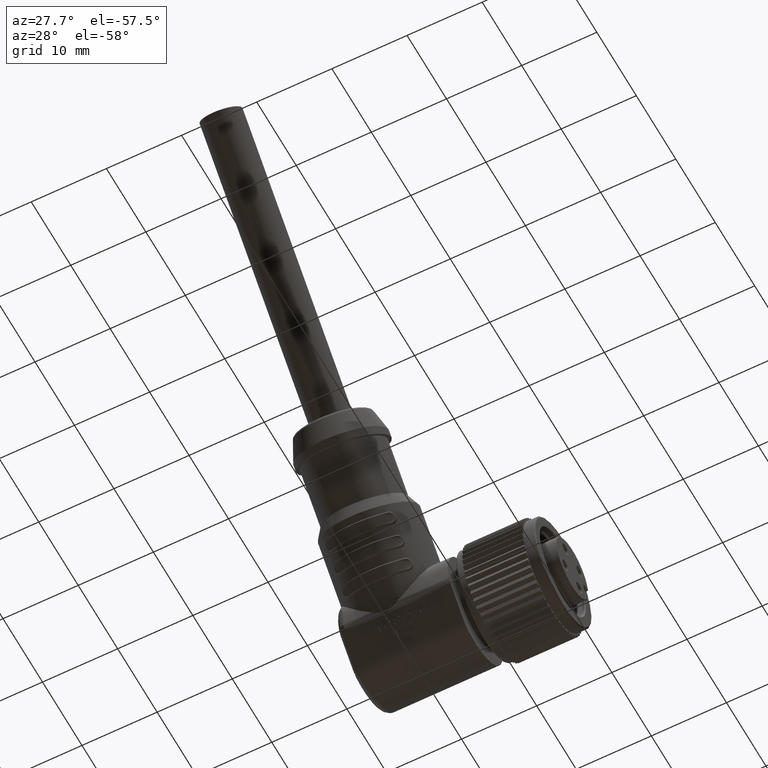
[diagram: clean part render]
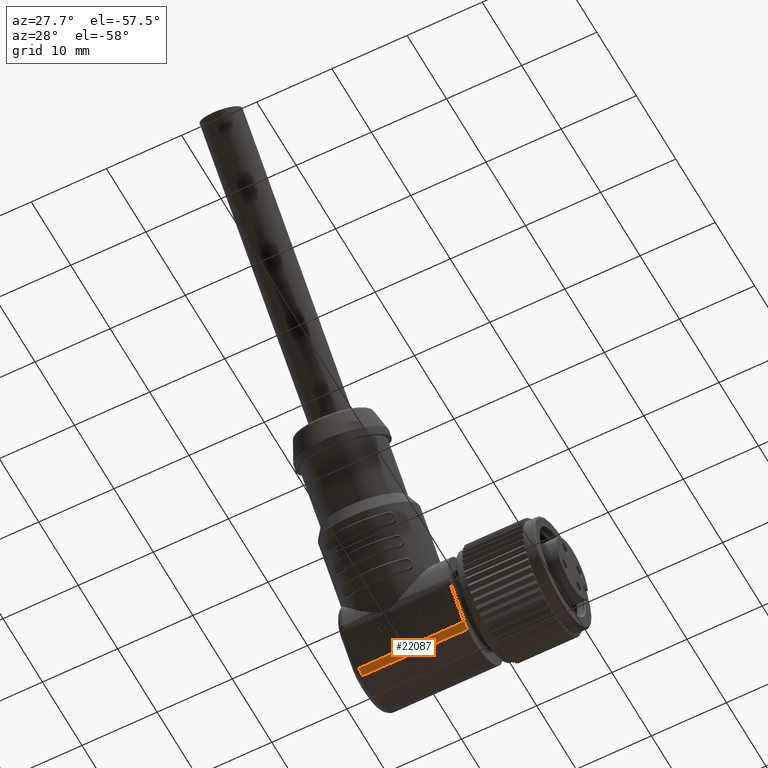
[diagram: same view with one face highlighted and labeled with its STEP entity id]
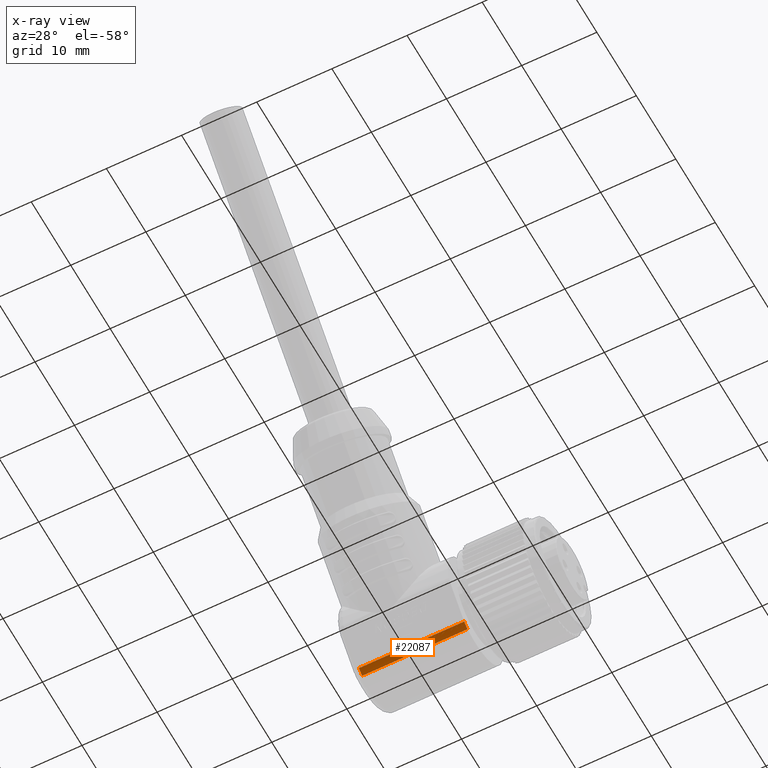
[diagram: x-ray of the same camera — body ghosted, the highlighted face saturated]
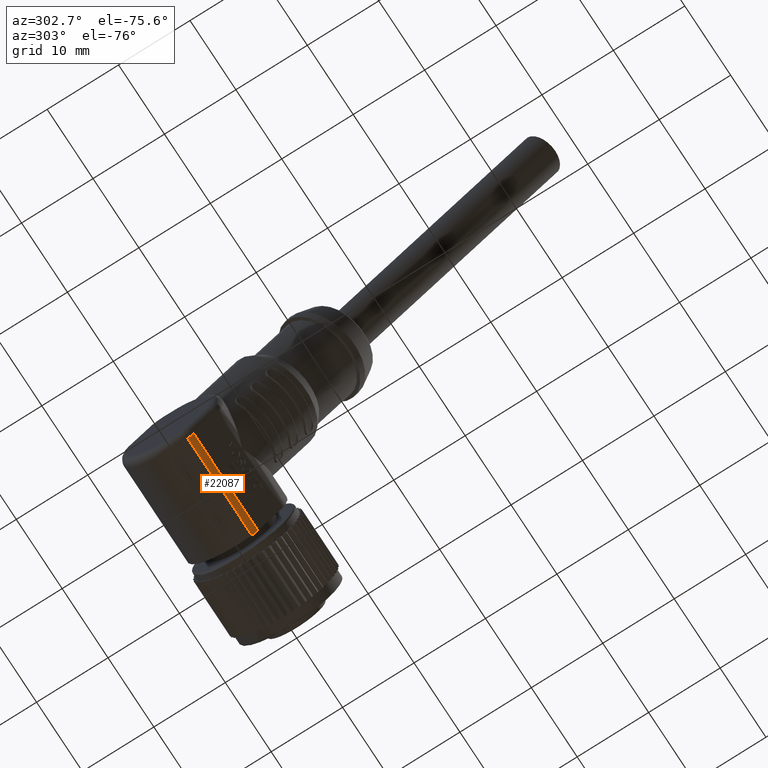
[diagram: same view with one face highlighted and labeled with its STEP entity id]
A machine part, auxiliary view. The second image highlights one B-rep face of the part: STEP entity #22087.
The next image is the same camera in x-ray: the body ghosted, the highlighted face saturated — about 0% of this face is hidden behind the body in this view.
A second angle (auxiliary view) of the same face is appended — the face is thin or edge-on in the first view.
In plain terms, the highlighted cylindrical surface (edge-blend (fillet) strip) has radius 2 mm, axis along (-1, 0, 0).
Its self-contained STEP definition (entity closure, byte-faithful):
#2576=CARTESIAN_POINT('',(-1.29E1,-1.431984274846E0,-4.790555399595E0));
#2577=DIRECTION('',(-1.E0,0.E0,0.E0));
#2578=DIRECTION('',(0.E0,-2.863968549679E-1,-9.581110799195E-1));
#2579=AXIS2_PLACEMENT_3D('',#2576,#2577,#2578);
#2624=DIRECTION('',(1.E0,-6.858006226398E-14,1.523860402942E-13));
#2625=VECTOR('',#2624,1.4E1);
#2626=CARTESIAN_POINT('',(-2.69E1,-2.846197837220E0,-6.204768961969E0));
#2627=LINE('',#2626,#2625);
#3202=CARTESIAN_POINT('',(-2.689999999998E1,-1.431984274855E0,
-4.790555399610E0));
#3203=DIRECTION('',(1.E0,-6.636456908689E-12,-1.148866063577E-11));
#3204=DIRECTION('',(-1.281641459638E-11,-7.071067811877E-1,-7.071067811854E-1));
#3205=AXIS2_PLACEMENT_3D('',#3202,#3203,#3204);
#3217=DIRECTION('',(1.E0,3.815995138926E-14,-1.224417392872E-14));
#3218=VECTOR('',#3217,1.4E1);
#3219=CARTESIAN_POINT('',(-2.69E1,-2.004777984784E0,-6.706777559433E0));
#3220=LINE('',#3219,#3218);
#13413=CARTESIAN_POINT('',(-1.29E1,-2.004777984782E0,-6.706777559434E0));
#13414=CARTESIAN_POINT('',(-1.29E1,-2.846197837224E0,-6.204768961963E0));
#13415=VERTEX_POINT('',#13413);
#13416=VERTEX_POINT('',#13414);
#13427=CARTESIAN_POINT('',(-2.69E1,-2.846197837220E0,-6.204768961969E0));
#13428=VERTEX_POINT('',#13427);
#13429=CARTESIAN_POINT('',(-2.69E1,-2.004777984784E0,-6.706777559433E0));
#13430=VERTEX_POINT('',#13429);
#22073=CARTESIAN_POINT('',(6.654E0,-1.431984274846E0,-4.790555399595E0));
#22074=DIRECTION('',(-1.E0,0.E0,0.E0));
#22075=DIRECTION('',(0.E0,-2.863968549692E-1,-9.581110799191E-1));
#22076=AXIS2_PLACEMENT_3D('',#22073,#22074,#22075);
#22077=CYLINDRICAL_SURFACE('',#22076,2.E0);
#22079=ORIENTED_EDGE('',*,*,#22078,.T.);
#22080=ORIENTED_EDGE('',*,*,#22050,.F.);
#22082=ORIENTED_EDGE('',*,*,#22081,.F.);
#22084=ORIENTED_EDGE('',*,*,#22083,.F.);
#22085=EDGE_LOOP('',(#22079,#22080,#22082,#22084));
#22086=FACE_OUTER_BOUND('',#22085,.F.);
#22087=ADVANCED_FACE('',(#22086),#22077,.T.);
#2580=CIRCLE('',#2579,2.E0);
#3206=CIRCLE('',#3205,1.999999999983E0);
#22050=EDGE_CURVE('',#13415,#13416,#2580,.T.);
#22078=EDGE_CURVE('',#13428,#13416,#2627,.T.);
#22081=EDGE_CURVE('',#13430,#13415,#3220,.T.);
#22083=EDGE_CURVE('',#13428,#13430,#3206,.T.);